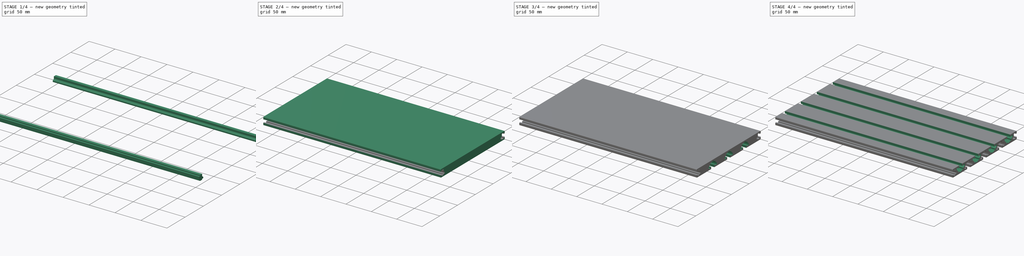
[diagram: build sequence overview — one tinted view per stage of 4, left to right]
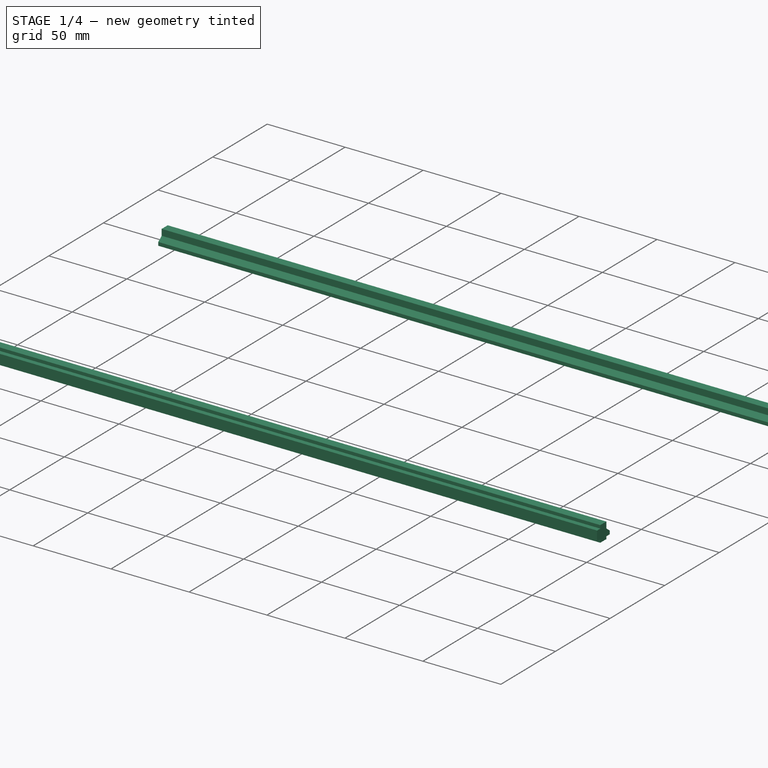
[diagram: stage 1 of 4 — iso view after this stage's code; geometry added in this stage tinted green]
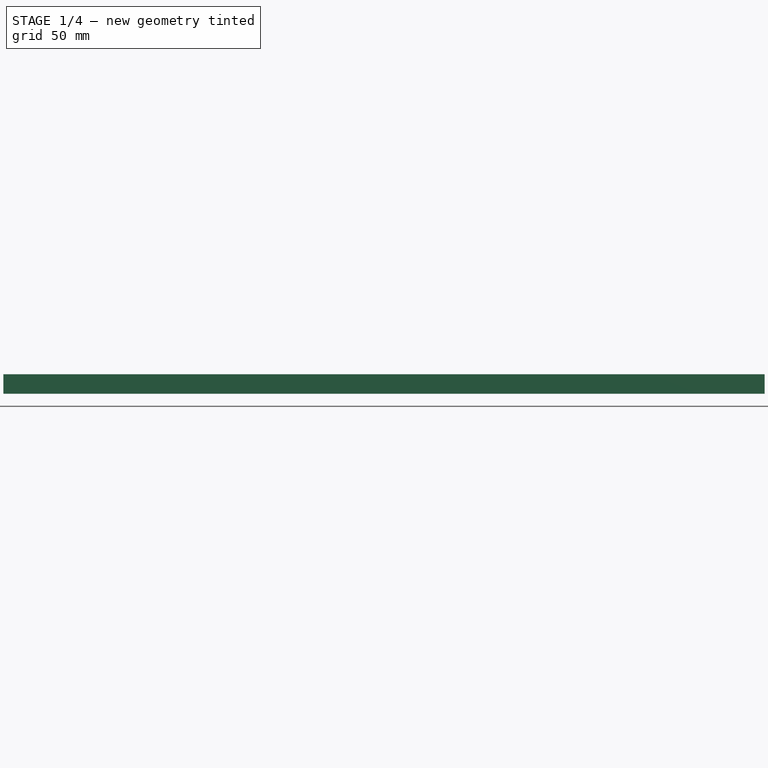
[diagram: stage 1 of 4 — front view after this stage's code; geometry added in this stage tinted green]
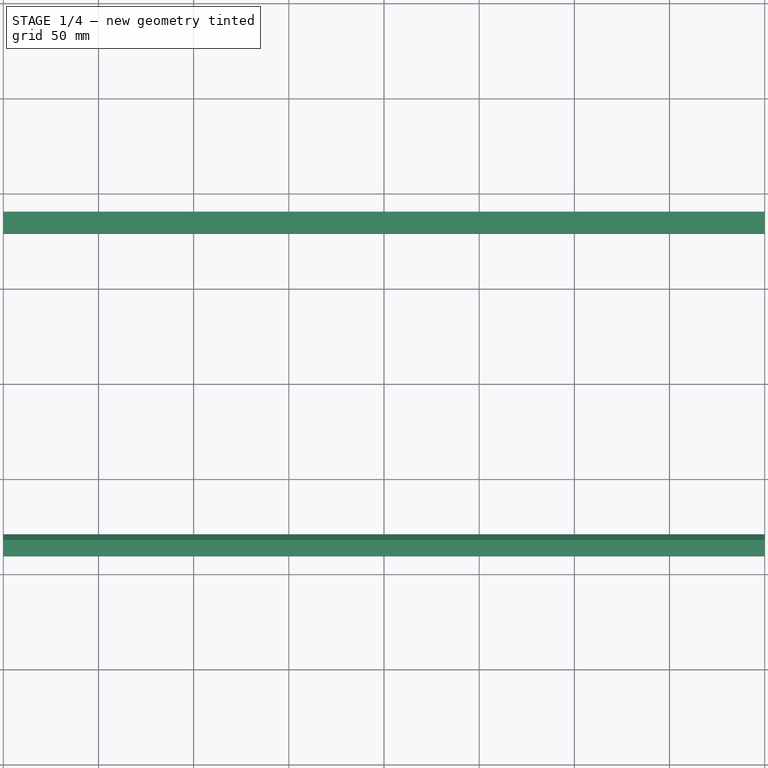
[diagram: stage 1 of 4 — top view after this stage's code; geometry added in this stage tinted green]
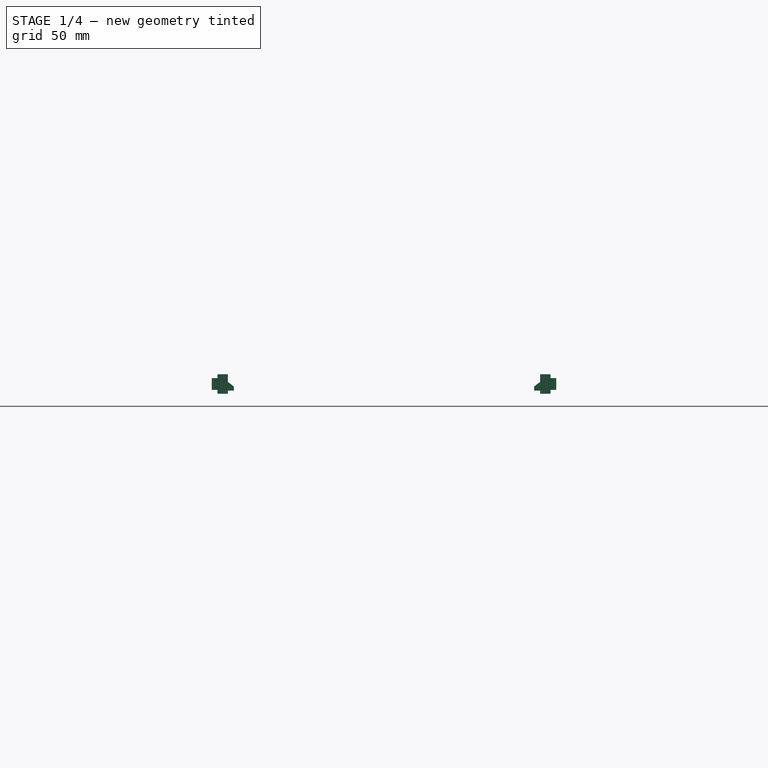
[diagram: stage 1 of 4 — right view after this stage's code; geometry added in this stage tinted green]
FCSTD DOCUMENT  (FreeCAD 0.21R33668 +7 (Git))
Label: 300x180x15mm T-Slot Profile Aluminum
License: All rights reserved
LicenseURL: http://en.wikipedia.org/wiki/All_rights_reserved
objects: Sketcher::SketchObject×4, PartDesign::Pad×4, PartDesign::Body×4, Part::Cut×3, Part::FeaturePython×2, Part::Mirroring×1, PartDesign::Fillet×1, Part::MultiFuse×1, App::TextDocument×1
note: 25 computed .brp shape members not serialized (recipe doc carries the construction recipe); baked Part::Feature solids carry a one-line shape summary decoded from their .brp

FEATURE [Sketcher::SketchObject] Sketch003
  FullyConstrained = true
  MapMode = 5
  Placement = pos=(0,0,0) rot=(0.57735,0.57735,0.57735;2.0944rad)
  Support = -> [YZ_Plane003]
  sketch-geometry (12):
    g0: LineSegment StartX=-90.5 StartY=3.1 StartZ=0 EndX=-87.5 EndY=3.1 EndZ=0
    g1: LineSegment StartX=-87.5 StartY=3.1 StartZ=0 EndX=-87.5 EndY=5.1 EndZ=0
    g2: LineSegment StartX=-87.5 StartY=5.1 StartZ=0 EndX=-82 EndY=5.1 EndZ=0
    g3: LineSegment StartX=-82 StartY=5.1 StartZ=0 EndX=-82 EndY=1.1 EndZ=0
    g4: LineSegment StartX=-82 StartY=1.1 StartZ=0 EndX=-78.9 EndY=-1.3 EndZ=0
    g5: LineSegment StartX=-78.9 StartY=-1.3 StartZ=0 EndX=-78.9 EndY=-3.5 EndZ=0
    g6: LineSegment StartX=-78.9 StartY=-3.5 StartZ=0 EndX=-82 EndY=-3.5 EndZ=0
    g7: LineSegment StartX=-82 StartY=-3.5 StartZ=0 EndX=-82 EndY=-5.1 EndZ=0
    g8: LineSegment StartX=-82 StartY=-5.1 StartZ=0 EndX=-87.5 EndY=-5.1 EndZ=0
    g9: LineSegment StartX=-87.5 StartY=-5.1 StartZ=0 EndX=-87.5 EndY=-3.1 EndZ=0
    g10: LineSegment StartX=-87.5 StartY=-3.1 StartZ=0 EndX=-90.5 EndY=-3.1 EndZ=0
    g11: LineSegment StartX=-90.5 StartY=-3.1 StartZ=0 EndX=-90.5 EndY=3.1 EndZ=0
  constraints (35):
    c: Horizontal(g0)
    c: Coincident(g0,g1)
    c: Vertical(g1)
    c: Coincident(g1,g2)
    c: Horizontal(g2)
    c: Coincident(g2,g3)
    c: Vertical(g3)
    c: Coincident(g3,g4)
    c: Coincident(g4,g5)
    c: Vertical(g5)
    c: Coincident(g5,g6)
    c: Horizontal(g6)
    c: Coincident(g6,g7)
    c: Coincident(g7,g8)
    c: Horizontal(g8)
    c: Coincident(g8,g9)
    c: Coincident(g9,g10)
    c: Horizontal(g10)
    c: Coincident(g10,g11)
    c: Coincident(g0,g11)
    c: Vertical(g9)
    c: Equal(g10,g0)
    c: Equal(g2,g8)
    c: Vertical(g7)
    c: DistanceY(g8,g1) = 10.2
    c: Symmetric(g0,g9,g-1)
    c: DistanceX(g0,g-1) = 90.5
    c: DistanceX(g0,g2) = 8.5
    c: DistanceX(g0,g1) = 3
    c: DistanceY(g11,g11) = 6.2
    c: DistanceY(g5,g-1) = 3.5
    c: DistanceX(g7,g5) = 3.1
    c: DistanceY(g3,g2) = 4
    c: DistanceY(g5,g4) = 2.2
    c: Equal(g9,g1)
FEATURE [PartDesign::Pad] Pad003
  Direction = (1,-2e-16,3e-16)
  Length = 400
  Length2 = 10
  Midplane = true
  Placement = pos=(0,0,0) rot=(0.57735,0.57735,0.57735;2.0944rad)
  Profile = -> Sketch003
  ReferenceAxis = -> Sketch003 [N_Axis]
  Type = 0
FEATURE [PartDesign::Body] Body003
  Group = -> [Sketch003,Pad003]
  Origin = -> Origin003
  Tip = -> Pad003
FEATURE [Part::Mirroring] Part__Mirroring  label="Body003 (Mirror #1)"
  Base = (0,0,0)
  Normal = (0,1,0)
  Source = -> Body003
FEATURE [PartDesign::Body] Body
  Group = -> [Sketch,Pad,Fillet]
  Origin = -> Origin
  Tip = -> Fillet
FEATURE [Part::MultiFuse] Fusion
  Shapes = -> [Part__Mirroring,Body003]
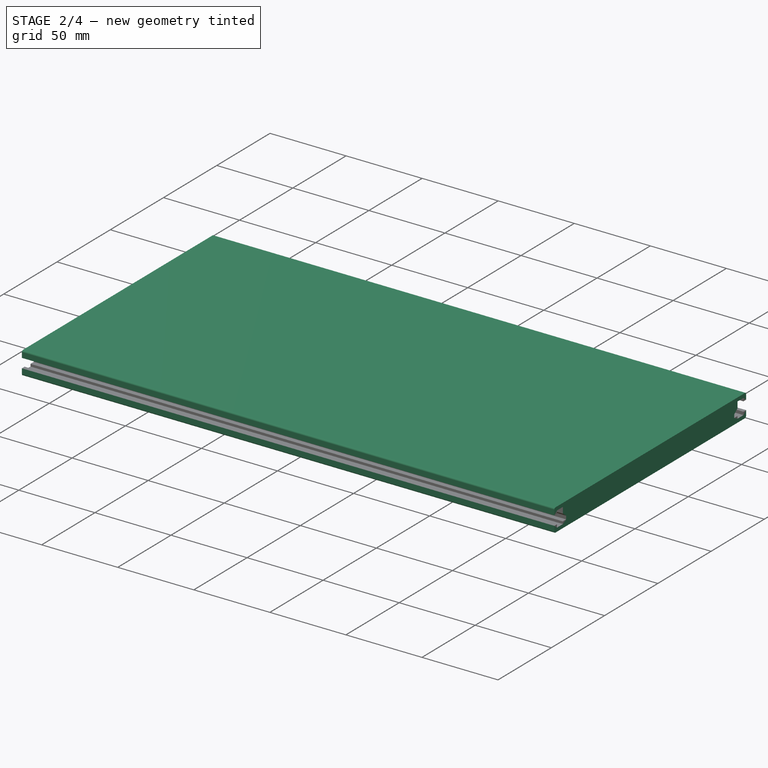
[diagram: stage 2 of 4 — iso view after this stage's code; geometry added in this stage tinted green]
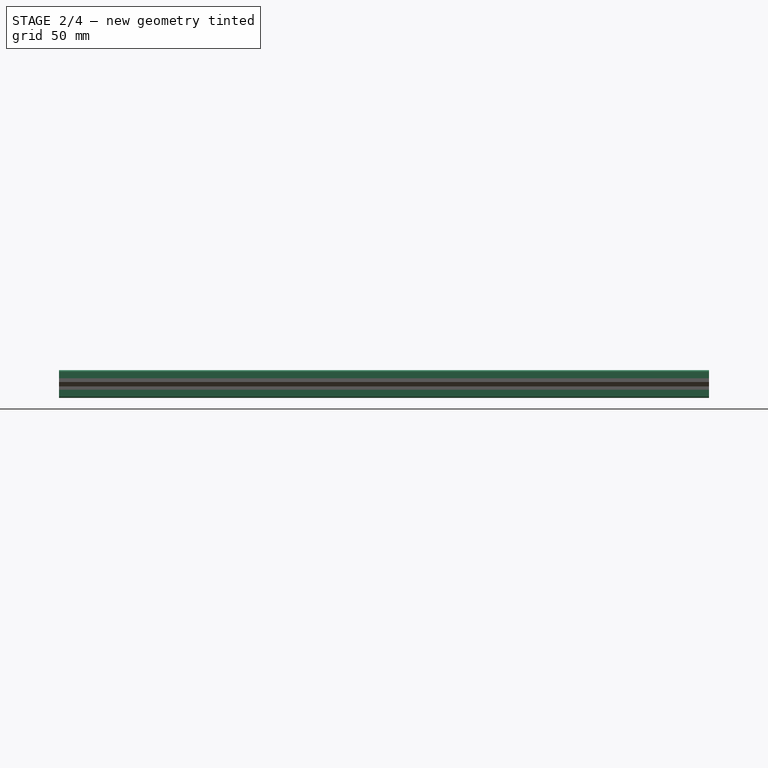
[diagram: stage 2 of 4 — front view after this stage's code; geometry added in this stage tinted green]
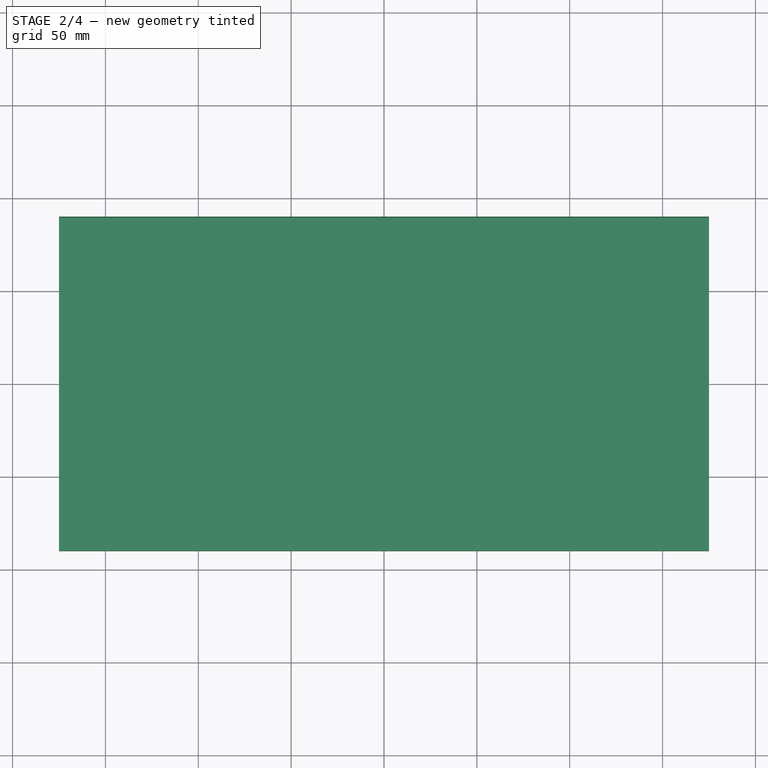
[diagram: stage 2 of 4 — top view after this stage's code; geometry added in this stage tinted green]
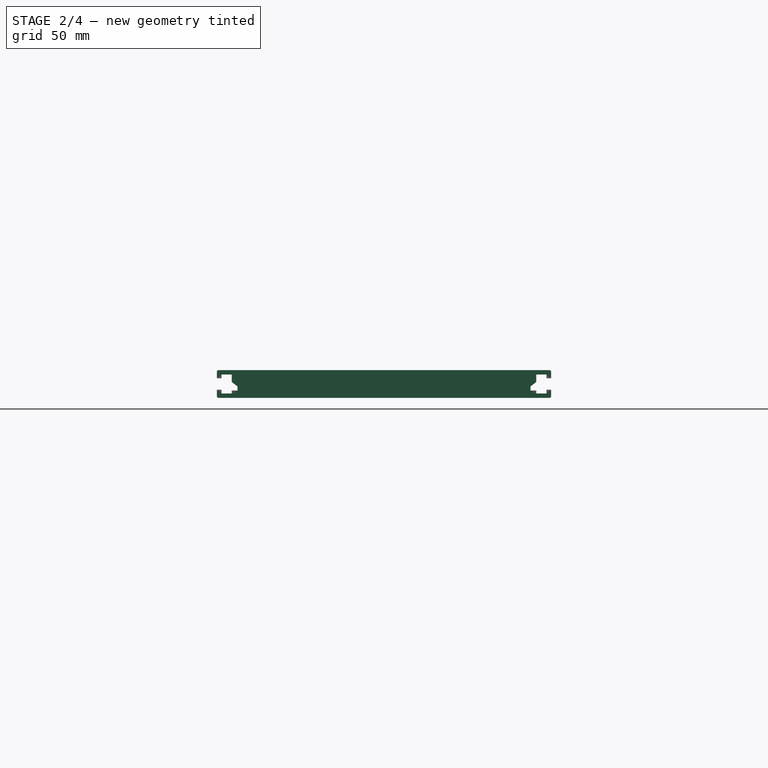
[diagram: stage 2 of 4 — right view after this stage's code; geometry added in this stage tinted green]
FEATURE [Sketcher::SketchObject] Sketch
  FullyConstrained = true
  MapMode = 5
  Placement = pos=(0,0,0) rot=(0.57735,0.57735,0.57735;2.0944rad)
  Support = -> [YZ_Plane]
  sketch-geometry (4):
    g0: LineSegment StartX=-90 StartY=7.5 StartZ=0 EndX=90 EndY=7.5 EndZ=0
    g1: LineSegment StartX=90 StartY=7.5 StartZ=0 EndX=90 EndY=-7.5 EndZ=0
    g2: LineSegment StartX=90 StartY=-7.5 StartZ=0 EndX=-90 EndY=-7.5 EndZ=0
    g3: LineSegment StartX=-90 StartY=-7.5 StartZ=0 EndX=-90 EndY=7.5 EndZ=0
  constraints (11):
    c: Coincident(g0,g1)
    c: Coincident(g1,g2)
    c: Coincident(g2,g3)
    c: Coincident(g3,g0)
    c: Horizontal(g0)
    c: Horizontal(g2)
    c: Vertical(g1)
    c: Vertical(g3)
    c: Symmetric(g0,g1,g-1)
    c: DistanceY(g3,g3) = 15
    c: DistanceX(g0,g0) = 180
FEATURE [PartDesign::Pad] Pad
  Direction = (1,-2e-16,3e-16)
  Length = 350
  Length2 = 10
  Midplane = true
  Placement = pos=(0,0,0) rot=(0.57735,0.57735,0.57735;2.0944rad)
  Profile = -> Sketch
  ReferenceAxis = -> Sketch [N_Axis]
  Type = 0
FEATURE [PartDesign::Fillet] Fillet
  Base = -> Pad [Edge1,Edge8,Edge2,Edge5]
  BaseFeature = -> Pad
  Placement = pos=(0,0,0) rot=(0.57735,0.57735,0.57735;2.0944rad)
  Radius = 1
  SupportTransform = false
  UseAllEdges = false
FEATURE [Part::Cut] Cut
  Base = -> Body
  Tool = -> Fusion
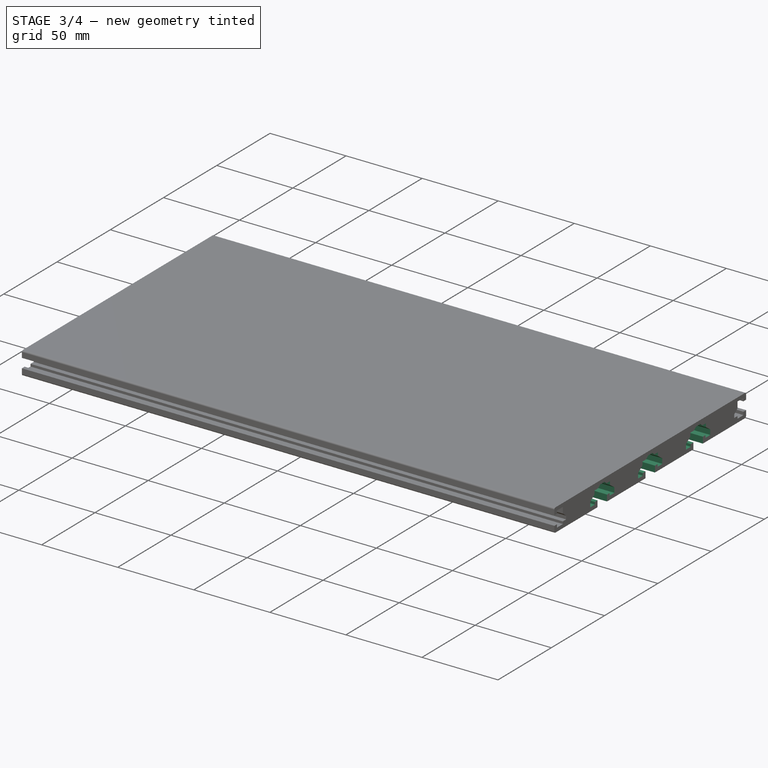
[diagram: stage 3 of 4 — iso view after this stage's code; geometry added in this stage tinted green]
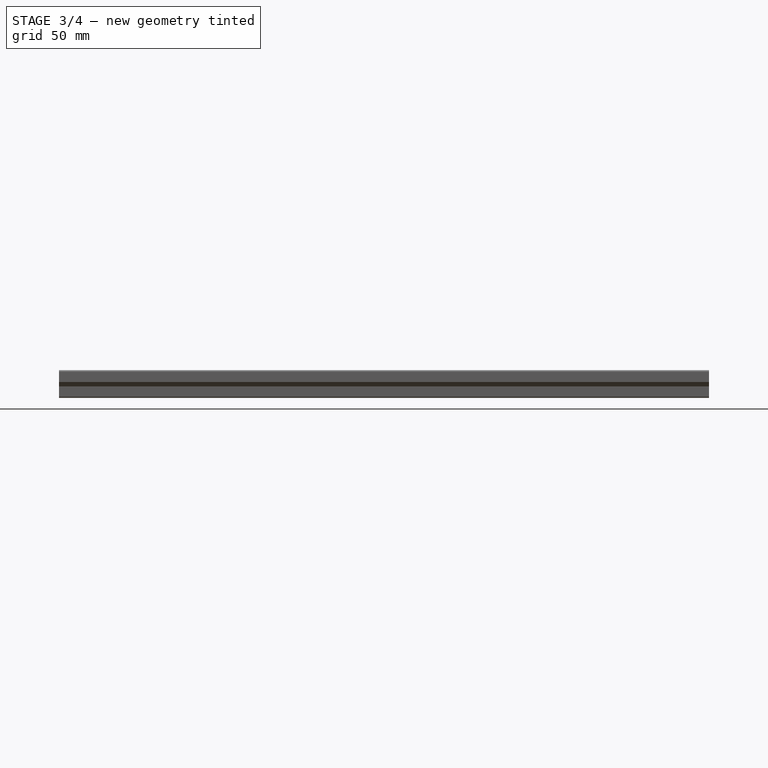
[diagram: stage 3 of 4 — front view after this stage's code; geometry added in this stage tinted green]
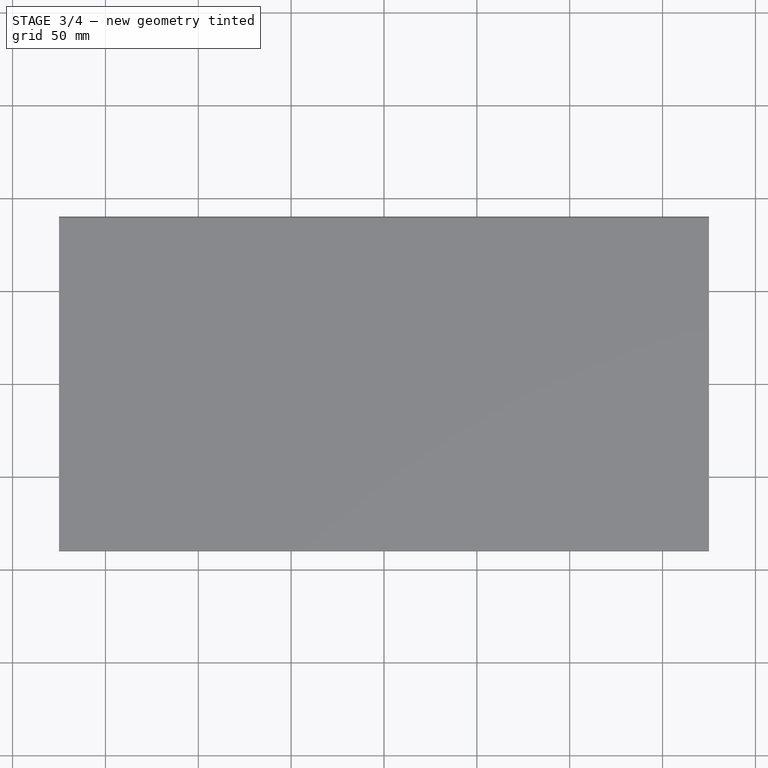
[diagram: stage 3 of 4 — top view after this stage's code; geometry added in this stage tinted green]
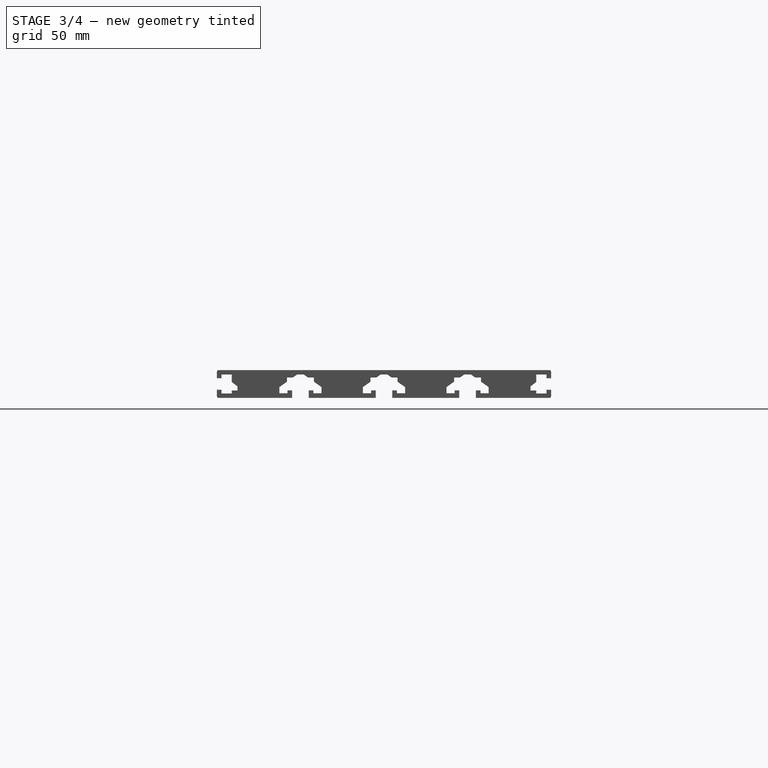
[diagram: stage 3 of 4 — right view after this stage's code; geometry added in this stage tinted green]
FEATURE [Sketcher::SketchObject] Sketch001
  FullyConstrained = true
  MapMode = 5
  Placement = pos=(0,0,0) rot=(0.57735,0.57735,0.57735;2.0944rad)
  Support = -> [YZ_Plane001]
  sketch-geometry (26):
    g0: LineSegment StartX=-4.45 StartY=-8 StartZ=0 EndX=-4.45 EndY=-3.4 EndZ=0
    g1: LineSegment StartX=-4.45 StartY=-3.4 StartZ=0 EndX=-6.95 EndY=-3.4 EndZ=0
    g2: LineSegment StartX=-6.95 StartY=-3.4 StartZ=0 EndX=-6.95 EndY=-5 EndZ=0
    g3: LineSegment StartX=-6.95 StartY=-5 StartZ=0 EndX=-11.35 EndY=-5 EndZ=0
    g4: LineSegment StartX=-11.35 StartY=-5 StartZ=0 EndX=-11.35 EndY=-1.67059 EndZ=0
    g5: LineSegment StartX=-11.35 StartY=-1.67059 StartZ=0 EndX=-7.25 EndY=1.23616 EndZ=0
    g6: LineSegment StartX=-7.25 StartY=1.23616 StartZ=0 EndX=-7.25 EndY=3.5 EndZ=0
    g7: LineSegment StartX=-7.25 StartY=3.5 StartZ=0 EndX=-4.05682 EndY=3.5 EndZ=0
    g8: LineSegment StartX=-4.05682 StartY=3.5 StartZ=0 EndX=-1.8 EndY=5.1 EndZ=0
    g9: LineSegment StartX=-1.8 StartY=5.1 StartZ=0 EndX=1.8 EndY=5.1 EndZ=0
    g10: LineSegment StartX=1.8 StartY=5.1 StartZ=0 EndX=4.05682 EndY=3.5 EndZ=0
    g11: LineSegment StartX=4.05682 StartY=3.5 StartZ=0 EndX=7.25 EndY=3.5 EndZ=0
    g12: LineSegment StartX=7.25 StartY=3.5 StartZ=0 EndX=7.25 EndY=1.23616 EndZ=0
    g13: LineSegment StartX=7.25 StartY=1.23616 StartZ=0 EndX=11.35 EndY=-1.67059 EndZ=0
    g14: LineSegment StartX=11.35 StartY=-1.67059 StartZ=0 EndX=11.35 EndY=-5 EndZ=0
    g15: LineSegment StartX=11.35 StartY=-5 StartZ=0 EndX=6.95 EndY=-5 EndZ=0
    g16: LineSegment StartX=6.95 StartY=-5 StartZ=0 EndX=6.95 EndY=-3.4 EndZ=0
    g17: LineSegment StartX=6.95 StartY=-3.4 StartZ=0 EndX=4.45 EndY=-3.4 EndZ=0
    g18: LineSegment StartX=4.45 StartY=-3.4 StartZ=0 EndX=4.45 EndY=-8 EndZ=0
    g19: LineSegment StartX=4.45 StartY=-8 StartZ=0 EndX=-4.45 EndY=-8 EndZ=0
    g20: LineSegment StartX=-11.15 StartY=1.67059 StartZ=0 EndX=-15.25 EndY=-1.23616 EndZ=0
    g21: LineSegment StartX=-15.25 StartY=-1.23616 StartZ=0 EndX=-15.25 EndY=-3.5 EndZ=0
    g22: LineSegment StartX=-15.25 StartY=-3.5 StartZ=0 EndX=-18.4432 EndY=-3.5 EndZ=0
    g23: LineSegment StartX=-18.4432 StartY=-3.5 StartZ=0 EndX=-20.7 EndY=-5.1 EndZ=0
    g24: LineSegment StartX=-11.15 StartY=1.67059 StartZ=0 EndX=-11.15 EndY=5 EndZ=0
    g25: LineSegment StartX=-11.15 StartY=1.67059 StartZ=0 EndX=-9.64048 EndY=-0.458605 EndZ=0
  constraints (74):
    c: Vertical(g0)
    c: Coincident(g0,g1)
    c: Coincident(g1,g2)
    c: Vertical(g2)
    c: Coincident(g2,g3)
    c: Coincident(g3,g4)
    c: Coincident(g4,g5)
    c: Coincident(g5,g6)
    c: Coincident(g6,g7)
    c: Horizontal(g7)
    c: Coincident(g7,g8)
    c: Coincident(g8,g9)
    c: Coincident(g9,g10)
    c: Coincident(g10,g11)
    c: Horizontal(g11)
    c: Coincident(g11,g12)
    c: Vertical(g12)
    c: Coincident(g12,g13)
    c: Coincident(g13,g14)
    c: Vertical(g14)
    c: Coincident(g14,g15)
    c: Coincident(g15,g16)
    c: Coincident(g16,g17)
    c: Horizontal(g17)
    c: Coincident(g17,g18)
    c: Coincident(g18,g19)
    c: Coincident(g19,g0)
    c: Symmetric(g8,g9,g-2)
    c: Symmetric(g0,g18,g-2)
    c: Vertical(g18)
    c: Vertical(g4)
    c: Vertical(g6)
    c: Horizontal(g3)
    c: Horizontal(g15)
    c: Horizontal(g1)
    c: Equal(g1,g17)
    c: Equal(g2,g16)
    c: Vertical(g16)
    c: Equal(g15,g3)
    c: Equal(g4,g14)
    c: Equal(g6,g12)
    c: Equal(g11,g7)
    c: Equal(g13,g5)
    c: DistanceX(g3,g14) = 22.7
    c: DistanceX(g2,g15) = 13.9
    c: Symmetric(g7,g10,g-2)
    c: DistanceY(g18,g-1) = 8
    c: DistanceY(g18,g9) = 13.1
    c: DistanceY(g0,g2) = 3
    c: DistanceX(g1,g1) = 2.5
    c: DistanceY(g0,g6) = 11.5
    c: DistanceY(g0,g1) = 4.6
    c: Tangent(g8,g5)
    c: Coincident(g20,g21)
    c: Vertical(g21)
    c: Coincident(g21,g22)
    c: Coincident(g22,g23)
    c: Horizontal(g22)
    c: Equal(g22,g7)
    c: Equal(g23,g8)
    c: Parallel(g23,g8)
    c: Tangent(g20,g23)
    c: DistanceY(g0,g23) = 2.9
    c: Equal(g20,g5)
    c: Coincident(g24,g20)
    c: Vertical(g24)
    c: Equal(g24,g4)
    c: DistanceX(g24,g13) = 22.5
    c: Coincident(g25,g20)
    c: PointOnObject(g25,g5)
    c: Perpendicular(g20,g25)
    c: Distance(g25) = 2.61
    c: DistanceX(g9,g9) = 3.6
    c: DistanceX(g6,g11) = 14.5
FEATURE [PartDesign::Pad] Pad001
  Direction = (1,-2e-16,3e-16)
  Length = 400
  Length2 = 10
  Midplane = true
  Placement = pos=(0,0,0) rot=(0.57735,0.57735,0.57735;2.0944rad)
  Profile = -> Sketch001
  ReferenceAxis = -> Sketch001 [N_Axis]
  Type = 0
FEATURE [PartDesign::Body] Body002
  Group = -> [Sketch002,Pad002]
  Origin = -> Origin002
  Placement = pos=(0,-67.5,8e-15) rot=(1,0,0;3.14159rad)
  Tip = -> Pad002
FEATURE [Part::FeaturePython] Array  # Draft array (typed FeaturePython)
  AlwaysSyncPlacement = false
  Angle = 360
  ArrayType = 0
  Axis = (0,0,1)
  Base = -> Body001
  Center = (0,0,0)
  Count = 3
  ExpandArray = false
  Fuse = true
  IntervalAxis = (0,0,0)
  IntervalX = (100,0,0)
  IntervalY = (0,45,0)
  IntervalZ = (0,0,100)
  NumberCircles = 3
  NumberPolar = 5
  NumberX = 1
  NumberY = 3
  NumberZ = 1
  PlacementList = 3 placements: arithmetic series from (0,-45,0) step (0,45,0) to (0,45,0)
  RadialDistance = 50
  ScaleList = (3) [(1,1,1),(1,1,1),(1,1,1)]
  Symmetry = 1
  TangentialDistance = 25
FEATURE [Part::Cut] Cut001
  Base = -> Cut
  Tool = -> Array
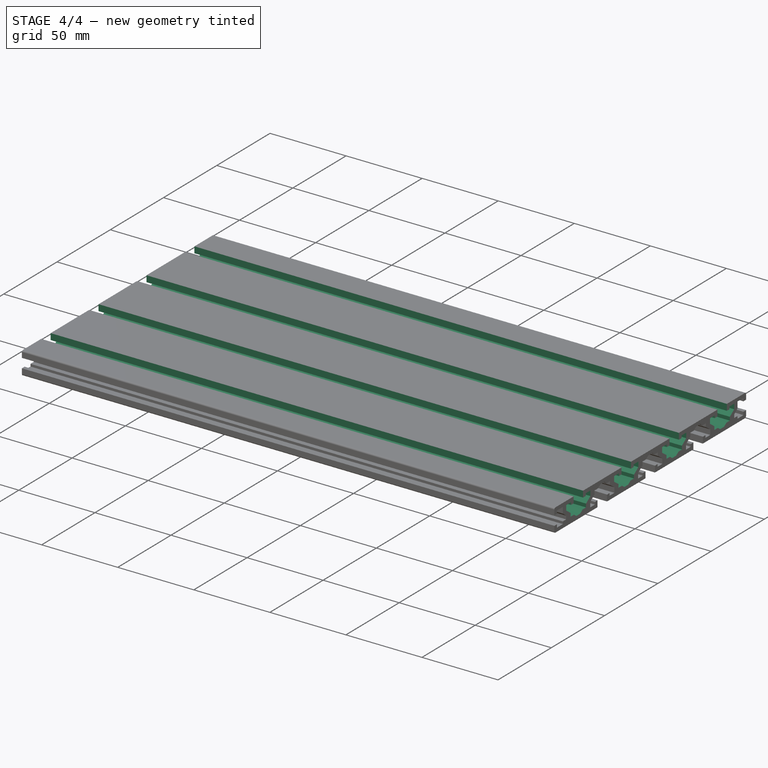
[diagram: stage 4 of 4 — iso view after this stage's code; geometry added in this stage tinted green]
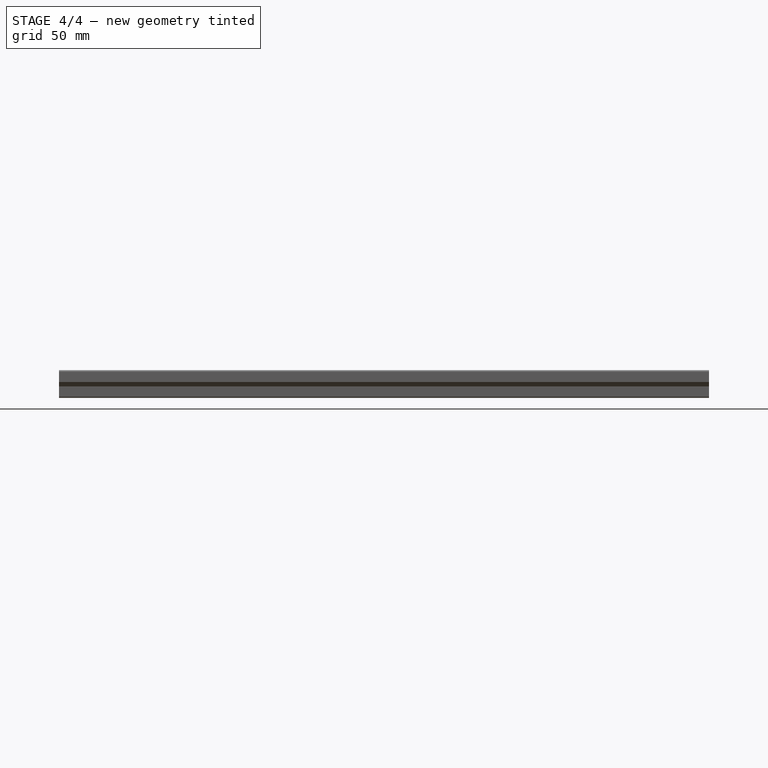
[diagram: stage 4 of 4 — front view after this stage's code; geometry added in this stage tinted green]
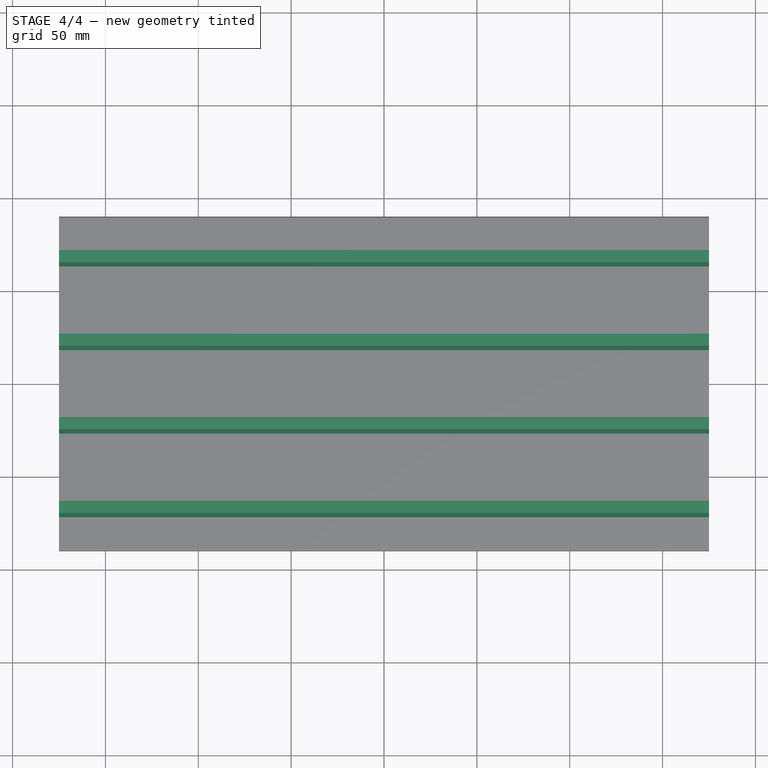
[diagram: stage 4 of 4 — top view after this stage's code; geometry added in this stage tinted green]
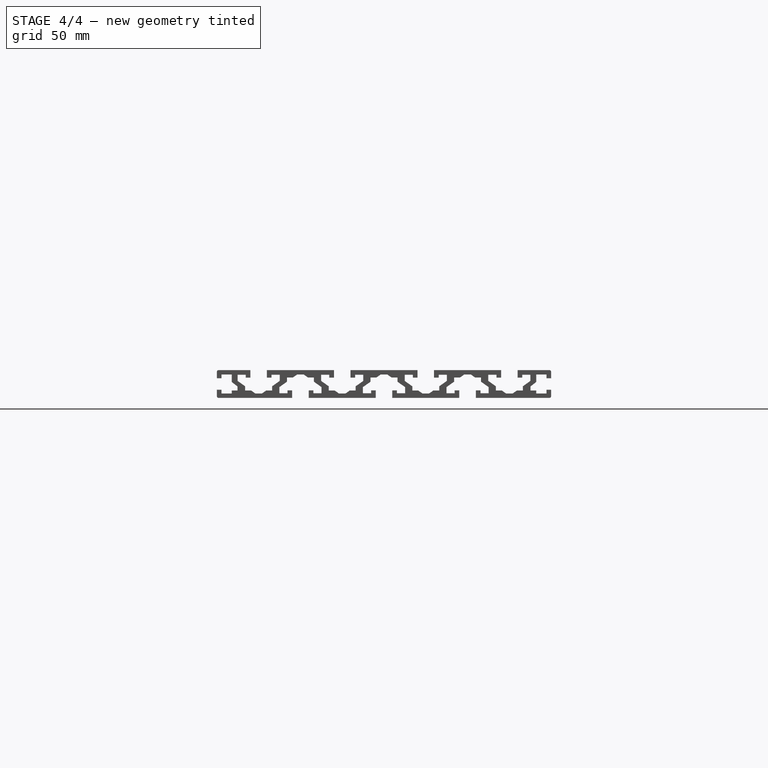
[diagram: stage 4 of 4 — right view after this stage's code; geometry added in this stage tinted green]
FEATURE [PartDesign::Body] Body001
  Group = -> [Sketch001,Pad001]
  Origin = -> Origin001
  Placement = pos=(0,-45,0) rot=(0,0,1;0rad)
  Tip = -> Pad001
FEATURE [Sketcher::SketchObject] Sketch002
  FullyConstrained = true
  MapMode = 5
  Placement = pos=(0,0,0) rot=(0.57735,0.57735,0.57735;2.0944rad)
  Support = -> [YZ_Plane002]
  sketch-geometry (26):
    g0: LineSegment StartX=-4.45 StartY=-8 StartZ=0 EndX=-4.45 EndY=-3.4 EndZ=0
    g1: LineSegment StartX=-4.45 StartY=-3.4 StartZ=0 EndX=-6.95 EndY=-3.4 EndZ=0
    g2: LineSegment StartX=-6.95 StartY=-3.4 StartZ=0 EndX=-6.95 EndY=-5 EndZ=0
    g3: LineSegment StartX=-6.95 StartY=-5 StartZ=0 EndX=-11.35 EndY=-5 EndZ=0
    g4: LineSegment StartX=-11.35 StartY=-5 StartZ=0 EndX=-11.35 EndY=-1.67059 EndZ=0
    g5: LineSegment StartX=-11.35 StartY=-1.67059 StartZ=0 EndX=-7.25 EndY=1.23616 EndZ=0
    g6: LineSegment StartX=-7.25 StartY=1.23616 StartZ=0 EndX=-7.25 EndY=3.5 EndZ=0
    g7: LineSegment StartX=-7.25 StartY=3.5 StartZ=0 EndX=-4.05682 EndY=3.5 EndZ=0
    g8: LineSegment StartX=-4.05682 StartY=3.5 StartZ=0 EndX=-1.8 EndY=5.1 EndZ=0
    g9: LineSegment StartX=-1.8 StartY=5.1 StartZ=0 EndX=1.8 EndY=5.1 EndZ=0
    g10: LineSegment StartX=1.8 StartY=5.1 StartZ=0 EndX=4.05682 EndY=3.5 EndZ=0
    g11: LineSegment StartX=4.05682 StartY=3.5 StartZ=0 EndX=7.25 EndY=3.5 EndZ=0
    g12: LineSegment StartX=7.25 StartY=3.5 StartZ=0 EndX=7.25 EndY=1.23616 EndZ=0
    g13: LineSegment StartX=7.25 StartY=1.23616 StartZ=0 EndX=11.35 EndY=-1.67059 EndZ=0
    g14: LineSegment StartX=11.35 StartY=-1.67059 StartZ=0 EndX=11.35 EndY=-5 EndZ=0
    g15: LineSegment StartX=11.35 StartY=-5 StartZ=0 EndX=6.95 EndY=-5 EndZ=0
    g16: LineSegment StartX=6.95 StartY=-5 StartZ=0 EndX=6.95 EndY=-3.4 EndZ=0
    g17: LineSegment StartX=6.95 StartY=-3.4 StartZ=0 EndX=4.45 EndY=-3.4 EndZ=0
    g18: LineSegment StartX=4.45 StartY=-3.4 StartZ=0 EndX=4.45 EndY=-8 EndZ=0
    g19: LineSegment StartX=4.45 StartY=-8 StartZ=0 EndX=-4.45 EndY=-8 EndZ=0
    g20: LineSegment StartX=-11.15 StartY=1.67059 StartZ=0 EndX=-15.25 EndY=-1.23616 EndZ=0
    g21: LineSegment StartX=-15.25 StartY=-1.23616 StartZ=0 EndX=-15.25 EndY=-3.5 EndZ=0
    g22: LineSegment StartX=-15.25 StartY=-3.5 StartZ=0 EndX=-18.4432 EndY=-3.5 EndZ=0
    g23: LineSegment StartX=-18.4432 StartY=-3.5 StartZ=0 EndX=-20.7 EndY=-5.1 EndZ=0
    g24: LineSegment StartX=-11.15 StartY=1.67059 StartZ=0 EndX=-11.15 EndY=5 EndZ=0
    g25: LineSegment StartX=-11.15 StartY=1.67059 StartZ=0 EndX=-9.64048 EndY=-0.458605 EndZ=0
  constraints (74):
    c: Vertical(g0)
    c: Coincident(g0,g1)
    c: Coincident(g1,g2)
    c: Vertical(g2)
    c: Coincident(g2,g3)
    c: Coincident(g3,g4)
    c: Coincident(g4,g5)
    c: Coincident(g5,g6)
    c: Coincident(g6,g7)
    c: Horizontal(g7)
    c: Coincident(g7,g8)
    c: Coincident(g8,g9)
    c: Coincident(g9,g10)
    c: Coincident(g10,g11)
    c: Horizontal(g11)
    c: Coincident(g11,g12)
    c: Vertical(g12)
    c: Coincident(g12,g13)
    c: Coincident(g13,g14)
    c: Vertical(g14)
    c: Coincident(g14,g15)
    c: Coincident(g15,g16)
    c: Coincident(g16,g17)
    c: Horizontal(g17)
    c: Coincident(g17,g18)
    c: Coincident(g18,g19)
    c: Coincident(g19,g0)
    c: Symmetric(g8,g9,g-2)
    c: Symmetric(g0,g18,g-2)
    c: Vertical(g18)
    c: Vertical(g4)
    c: Vertical(g6)
    c: Horizontal(g3)
    c: Horizontal(g15)
    c: Horizontal(g1)
    c: Equal(g1,g17)
    c: Equal(g2,g16)
    c: Vertical(g16)
    c: Equal(g15,g3)
    c: Equal(g4,g14)
    c: Equal(g6,g12)
    c: Equal(g11,g7)
    c: Equal(g13,g5)
    c: DistanceX(g3,g14) = 22.7
    c: DistanceX(g2,g15) = 13.9
    c: Symmetric(g7,g10,g-2)
    c: DistanceY(g18,g-1) = 8
    c: DistanceY(g18,g9) = 13.1
    c: DistanceY(g0,g2) = 3
    c: DistanceX(g1,g1) = 2.5
    c: DistanceY(g0,g6) = 11.5
    c: DistanceY(g0,g1) = 4.6
    c: Tangent(g8,g5)
    c: Coincident(g20,g21)
    c: Vertical(g21)
    c: Coincident(g21,g22)
    c: Coincident(g22,g23)
    c: Horizontal(g22)
    c: Equal(g22,g7)
    c: Equal(g23,g8)
    c: Parallel(g23,g8)
    c: Tangent(g20,g23)
    c: DistanceY(g0,g23) = 2.9
    c: Equal(g20,g5)
    c: Coincident(g24,g20)
    c: Vertical(g24)
    c: Equal(g24,g4)
    c: DistanceX(g24,g13) = 22.5
    c: Coincident(g25,g20)
    c: PointOnObject(g25,g5)
    c: Perpendicular(g20,g25)
    c: Distance(g25) = 2.61
    c: DistanceX(g9,g9) = 3.6
    c: DistanceX(g6,g11) = 14.5
FEATURE [PartDesign::Pad] Pad002
  Direction = (1,-2e-16,3e-16)
  Length = 400
  Length2 = 10
  Midplane = true
  Placement = pos=(0,0,0) rot=(0.57735,0.57735,0.57735;2.0944rad)
  Profile = -> Sketch002
  ReferenceAxis = -> Sketch002 [N_Axis]
  Type = 0
FEATURE [Part::FeaturePython] Array001  # Draft array (typed FeaturePython)
  AlwaysSyncPlacement = false
  Angle = 360
  ArrayType = 0
  Axis = (0,0,1)
  Base = -> Body002
  Center = (0,0,0)
  Count = 4
  ExpandArray = false
  Fuse = true
  IntervalAxis = (0,0,0)
  IntervalX = (100,0,0)
  IntervalY = (0,45,0)
  IntervalZ = (0,0,100)
  NumberCircles = 3
  NumberPolar = 5
  NumberX = 1
  NumberY = 4
  NumberZ = 1
  PlacementList = 4 placements: arithmetic series from (0,-67.5,8e-15) step (0,45,0) to (0,67.5,8e-15)
  RadialDistance = 50
  ScaleList = (4) [(1,1,1),(1,1,1),(1,1,1),(1,1,1)]
  Symmetry = 1
  TangentialDistance = 25
FEATURE [Part::Cut] Cut002
  Base = -> Cut001
  Tool = -> Array001
FEATURE [App::TextDocument] Text_document  label="AliExpress Link"
  Text = AliExpress Link\nhttps://www.aliexpress.us/item/3256805055661650.html?spm=a2g0o.productlist.main.1.4128217c972eDs&algo_pvid=d82b9be6-5fa0-4367-b22a-87568f09546b&algo_exp_id=d82b9be6-5fa0-4367-b22a-87568f09546b-0&pdp_npi=4%40dis%21USD%2145.30%2145.30%21%21%21327.10%21327.10%21%402101fb1917174197913545290e8a09%2112000032334291940%21sea%21US%211671159645%21AC&curPageLogUid=z2w4HZo9QQoT&utparam-url=scene%3Asearch%7Cquery_from%3A
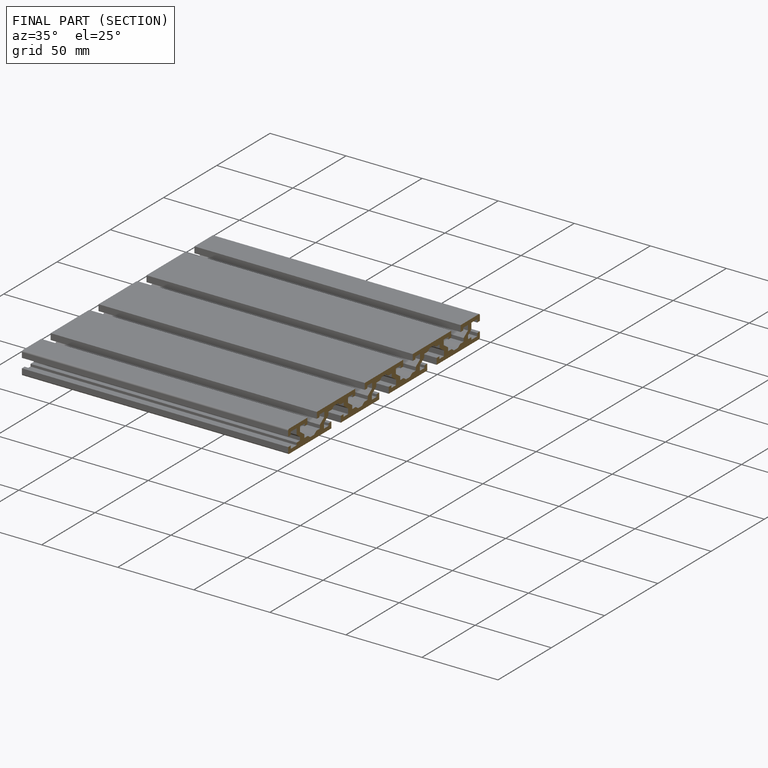
[diagram: finished part — half-section view (interior)]
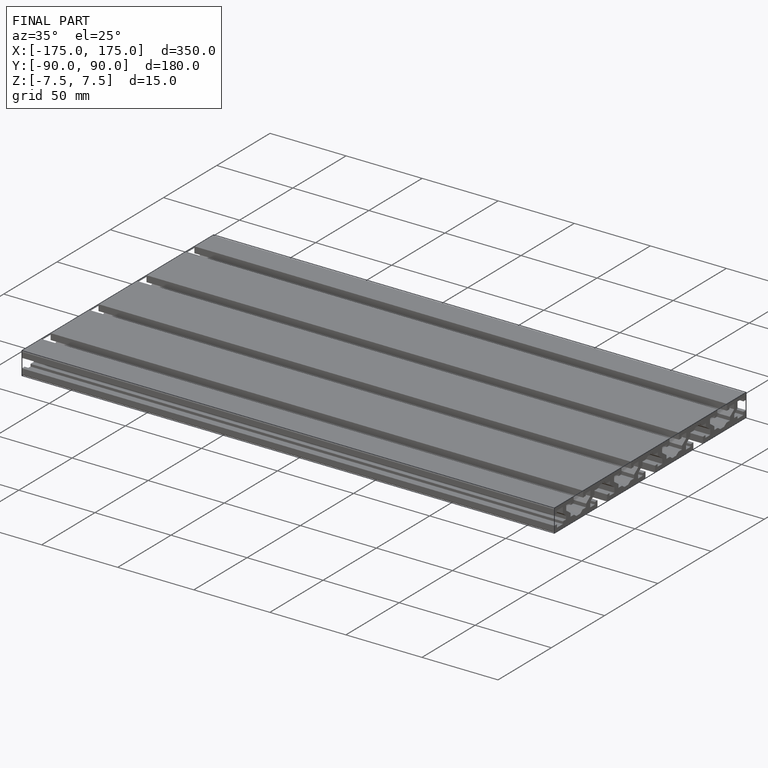
[diagram: finished part — iso view with bounding-box wireframe]
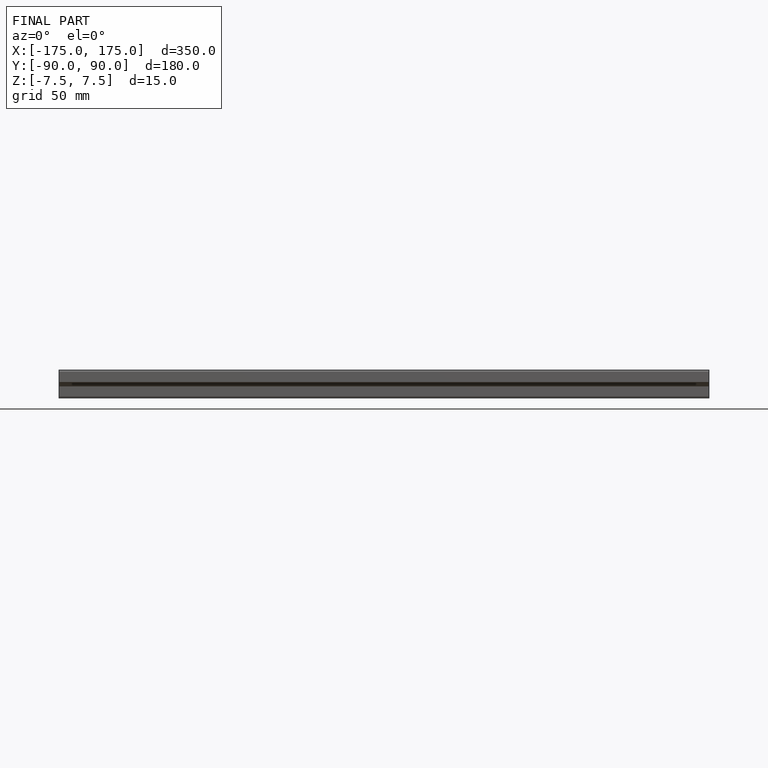
[diagram: finished part — front view with bounding-box wireframe]
